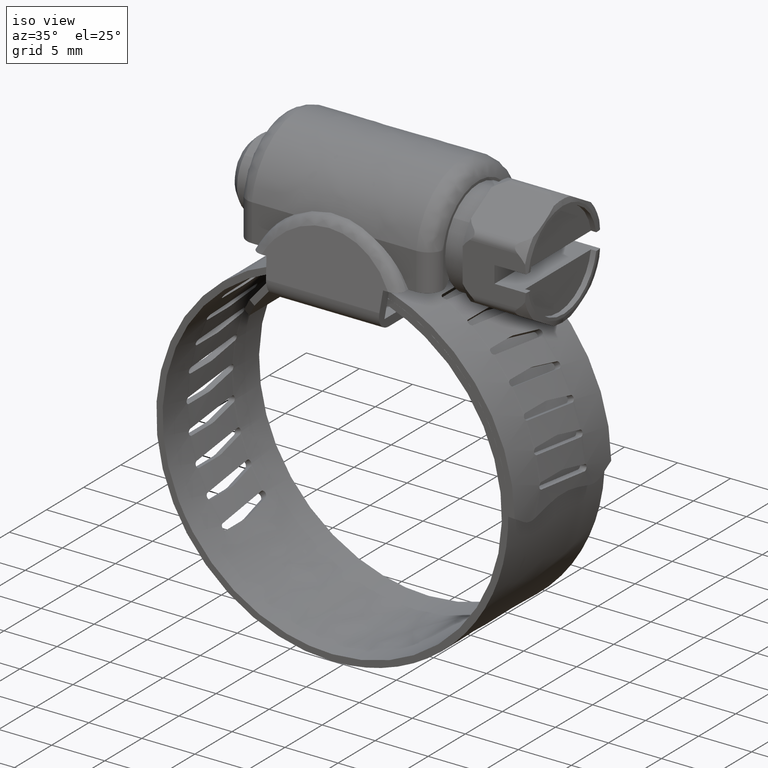
[diagram: clean part render]
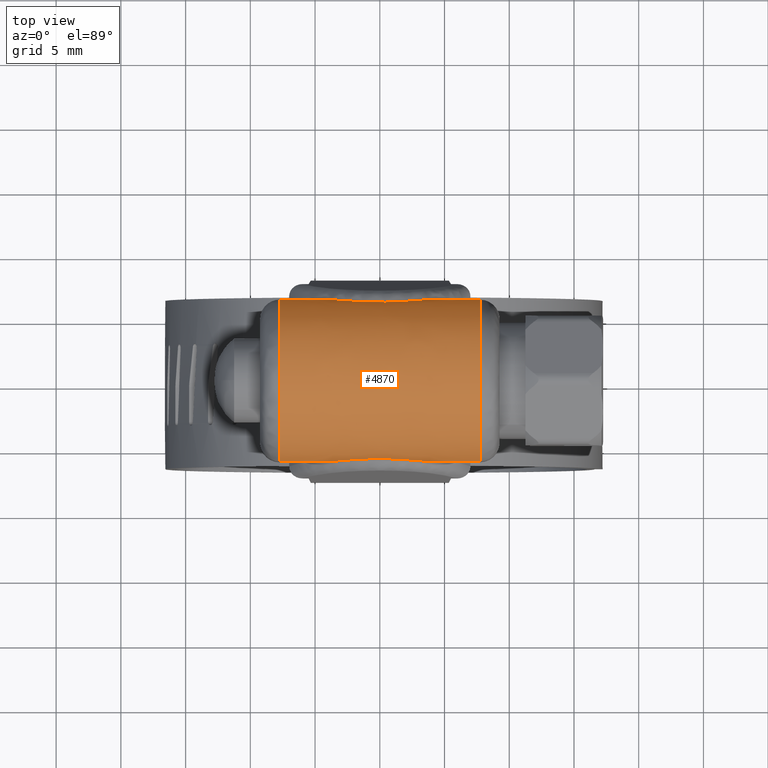
[diagram: tour spotlight — one face highlighted and labeled with its STEP entity id]
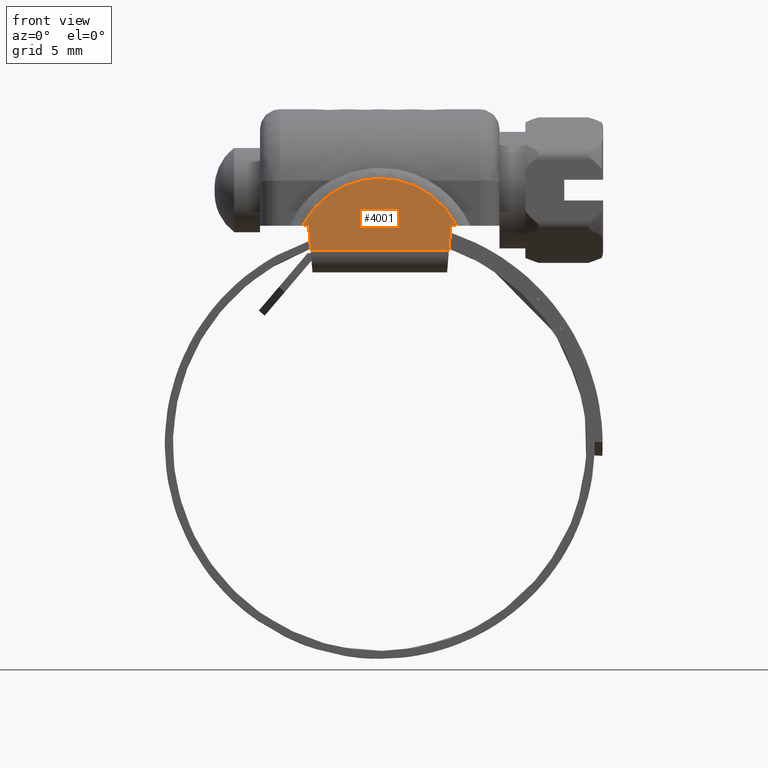
[diagram: tour spotlight — one face highlighted and labeled with its STEP entity id]
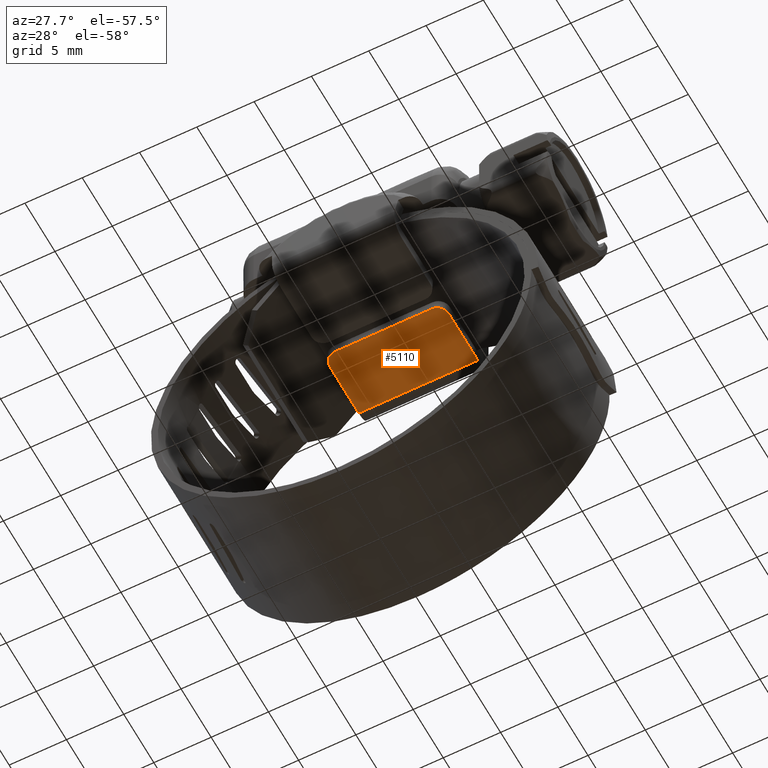
[diagram: tour spotlight — one face highlighted and labeled with its STEP entity id]
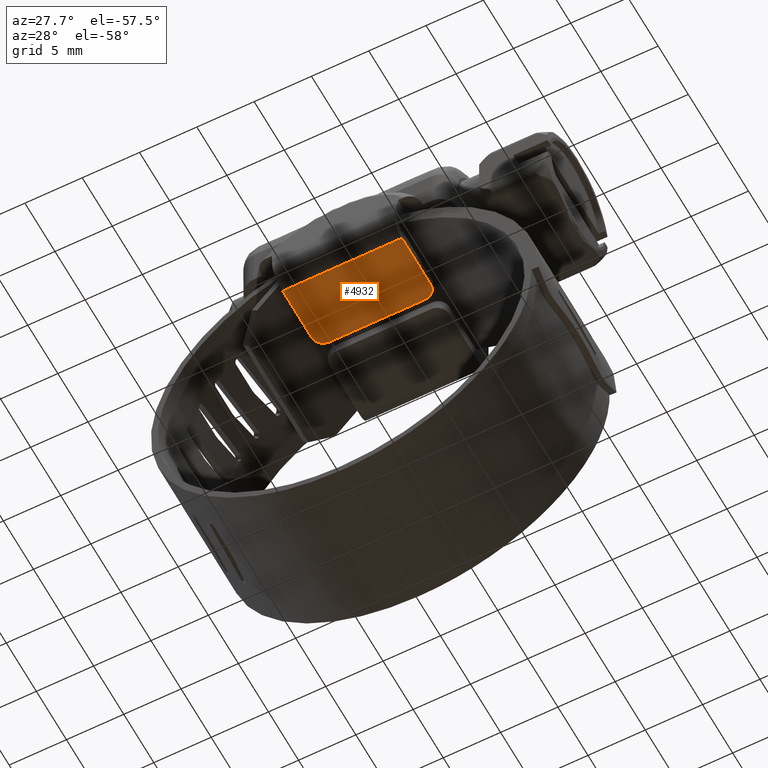
[diagram: tour spotlight — one face highlighted and labeled with its STEP entity id]
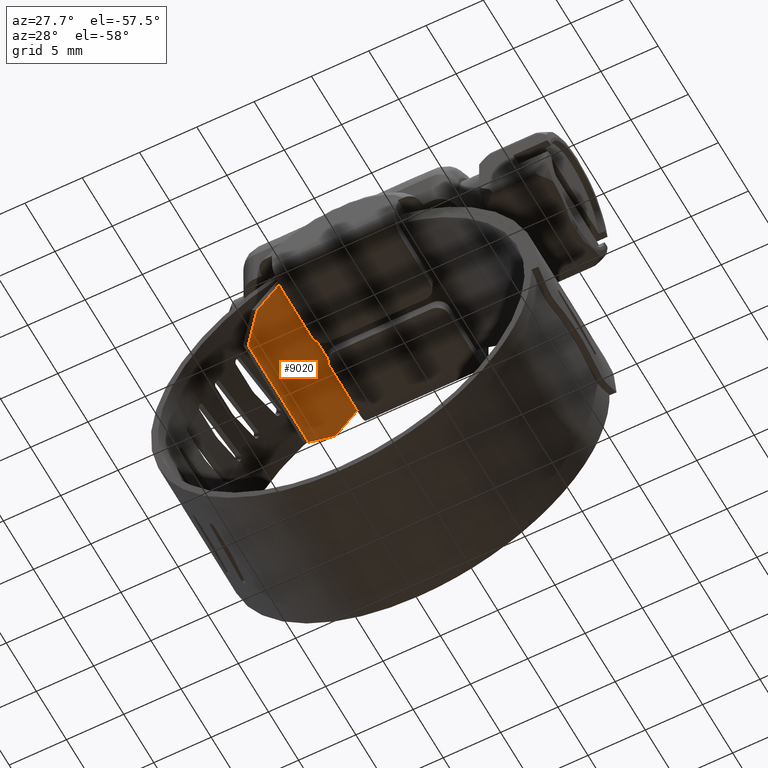
[diagram: tour spotlight — one face highlighted and labeled with its STEP entity id]
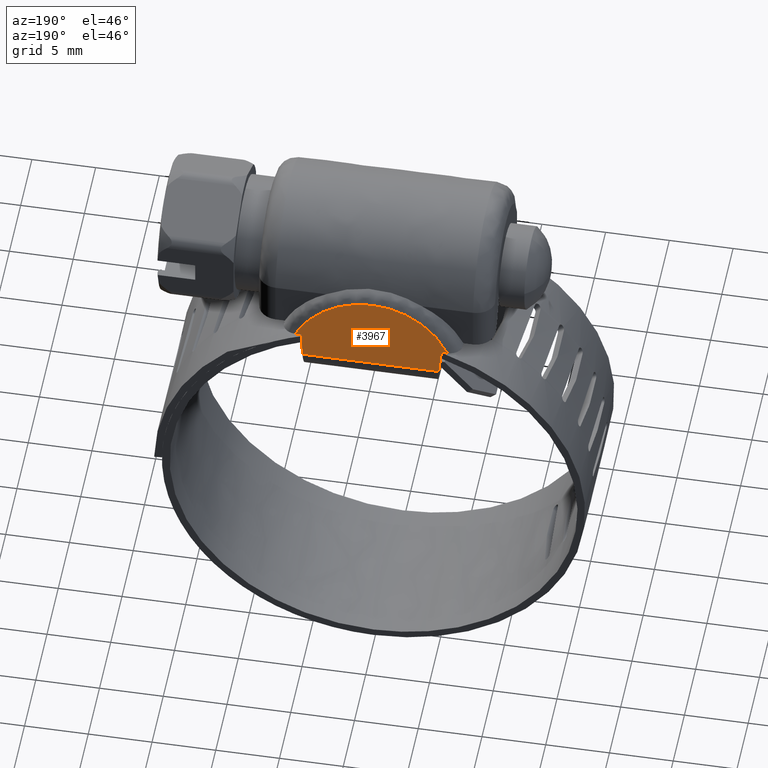
[diagram: tour spotlight — one face highlighted and labeled with its STEP entity id]
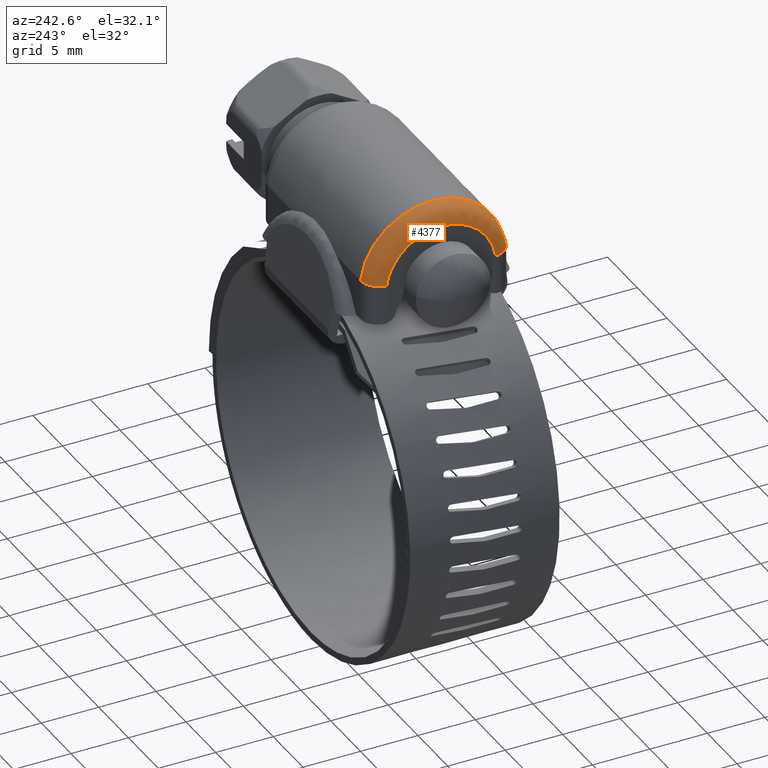
[diagram: tour spotlight — one face highlighted and labeled with its STEP entity id]
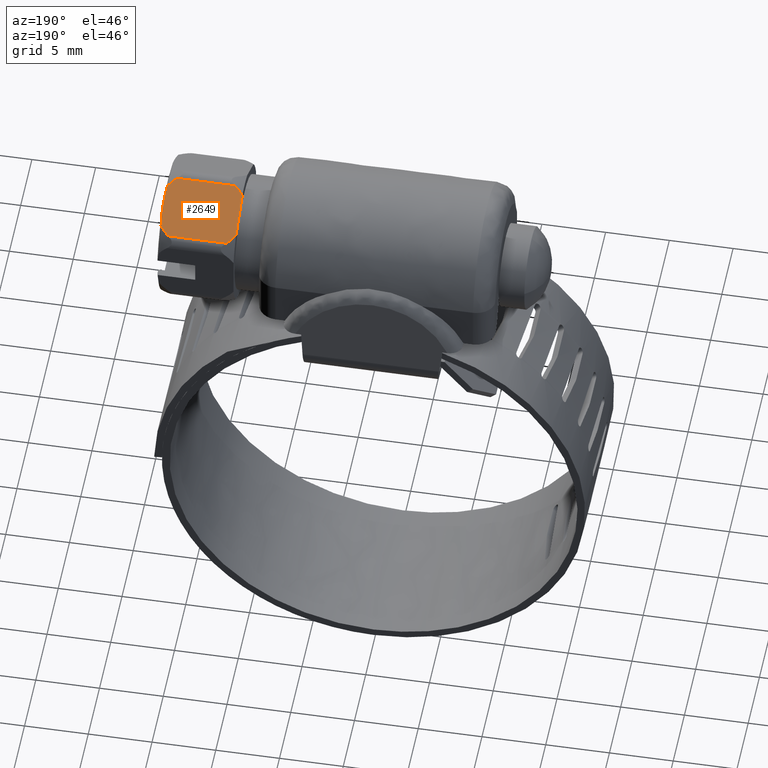
[diagram: tour spotlight — one face highlighted and labeled with its STEP entity id]
A machine part: a face-by-face anatomy tour. The part has 228 B-rep faces; the first image is the clean iso view, then the 8 largest visible faces are spotlighted one at a time (largest first), each with its STEP entity span.

Face 1 — top view, entity #4870. In plain terms, the highlighted face is a freeform B-spline surface patch.
Definition (entity closure, byte-faithful):
#3132=CARTESIAN_POINT('',(-3.766983245140355,-6.249999633170980,16.577121365332999));
#3133=VERTEX_POINT('',#3132);
#3245=CARTESIAN_POINT('',(3.766983245140355,-6.249999633170980,16.577121365332999));
#3246=VERTEX_POINT('',#3245);
#3254=CARTESIAN_POINT('',(-3.766983245140355,-6.249999633170980,16.577121365332999));
#3255=CARTESIAN_POINT('',(-3.478831496909463,-6.229233364205876,16.739128154655241));
#3256=CARTESIAN_POINT('',(-3.183300914378316,-6.204570008767342,16.882148632117168));
#3257=CARTESIAN_POINT('',(-2.576808892005547,-6.155228093785371,17.130036402120751));
#3258=CARTESIAN_POINT('',(-2.265836634976381,-6.130547265610534,17.234876518080021));
#3259=CARTESIAN_POINT('',(-1.866693869858923,-6.103751019367197,17.340919599546389));
#3260=CARTESIAN_POINT('',(-1.786486061357972,-6.098601892761600,17.360832235081901));
#3261=CARTESIAN_POINT('',(-1.626024433981459,-6.088846631766009,17.397907521513719));
#3262=CARTESIAN_POINT('',(-1.545665445436081,-6.084233341677489,17.415098594033861));
#3263=CARTESIAN_POINT('',(-1.304205280765513,-6.071283367227001,17.462673344400940));
#3264=CARTESIAN_POINT('',(-1.142721123573348,-6.063841070201703,17.489062200122419));
#3265=CARTESIAN_POINT('',(-0.656740159557208,-6.045693866015511,17.552452619586020));
#3266=CARTESIAN_POINT('',(-0.330719706065374,-6.039235105378521,17.573749912531952));
#3267=CARTESIAN_POINT('',(0.161419786626403,-6.039184386857341,17.573920279852860));
#3268=CARTESIAN_POINT('',(0.325985564198005,-6.040757096750824,17.568663909435760));
#3269=CARTESIAN_POINT('',(0.573631993009526,-6.045493593546023,17.552599085312352));
#3270=CARTESIAN_POINT('',(0.656241352251390,-6.047467871330164,17.545878086249040));
#3271=CARTESIAN_POINT('',(0.820475667525163,-6.052146371881373,17.529813216404978));
#3272=CARTESIAN_POINT('',(0.902253417529042,-6.054853191231874,17.520460500731989));
#3273=CARTESIAN_POINT('',(1.309472620170547,-6.070102513587345,17.467179843144940));
#3274=CARTESIAN_POINT('',(1.629917328613110,-6.087864840067938,17.403768142886481));
#3275=CARTESIAN_POINT('',(2.260627271324118,-6.130187882777850,17.236317853900928));
#3276=CARTESIAN_POINT('',(2.570888658853245,-6.154751397064583,17.132263968381999));
#3277=CARTESIAN_POINT('',(3.028839962946760,-6.192001216301294,16.945374784512900));
#3278=CARTESIAN_POINT('',(3.179777303179230,-6.204428908061730,16.878107182095970));
#3279=CARTESIAN_POINT('',(3.476686108309584,-6.228226204638982,16.734530296358798));
#3280=CARTESIAN_POINT('',(3.622917516897374,-6.239617229855899,16.658119055673680));
#3281=CARTESIAN_POINT('',(3.766983245140355,-6.249999633170980,16.577121365332999));
#3282=B_SPLINE_CURVE_WITH_KNOTS('',3,(#3254,#3255,#3256,#3257,#3258,#3259,#3260,#3261,#3262,#3263,#3264,#3265,#3266,#3267,#3268,#3269,#3270,#3271,#3272,#3273,#3274,#3275,#3276,#3277,#3278,#3279,#3280,#3281),.UNSPECIFIED.,.F.,.U.,(4,2,2,2,2,2,2,2,2,2,2,2,2,4),(0.000000039906754,0.125000000000001,0.250000000000001,0.281250000000001,0.312500000000001,0.375000000000001,0.500000000000001,0.562500000000001,0.593750000000001,0.625000000000000,0.750000000000000,0.875000000000000,0.937500000000000,0.999999982435041),.UNSPECIFIED.);
#3283=EDGE_CURVE('',#3133,#3246,#3282,.T.);
#3475=CARTESIAN_POINT('',(-3.767731017053410,6.249999633170980,16.577121365332999));
#3476=VERTEX_POINT('',#3475);
#3484=CARTESIAN_POINT('',(3.767731017053410,6.249999633170980,16.577121365332999));
#3485=VERTEX_POINT('',#3484);
#3486=CARTESIAN_POINT('',(3.767731017053410,6.249999633170980,16.577121365332999));
#3487=CARTESIAN_POINT('',(3.479497733507518,6.229237709105721,16.739094258291651));
#3488=CARTESIAN_POINT('',(3.183884050679524,6.204583222070062,16.882071151559519));
#3489=CARTESIAN_POINT('',(2.577243934754033,6.155257050299552,17.129902017543969));
#3490=CARTESIAN_POINT('',(2.266206147951572,6.130582696073145,17.234727400421061));
#3491=CARTESIAN_POINT('',(1.866991587071622,6.103790234875439,17.340766625409820));
#3492=CARTESIAN_POINT('',(1.786771470837745,6.098641773924828,17.360678763914390));
#3493=CARTESIAN_POINT('',(1.626284023453253,6.088887352445290,17.397754646818960));
#3494=CARTESIAN_POINT('',(1.545912167912042,6.084274283725710,17.414946625872581));
#3495=CARTESIAN_POINT('',(1.304413467685331,6.071324521135703,17.462525250646319));
#3496=CARTESIAN_POINT('',(1.142903704963588,6.063881763437935,17.488918202284239));
#3497=CARTESIAN_POINT('',(0.656845720759579,6.045732683460419,17.552320710697689));
#3498=CARTESIAN_POINT('',(0.330773580215899,6.039272260056391,17.573625094178219));
#3499=CARTESIAN_POINT('',(-0.161444854682112,6.039221514861135,17.573795563976041));
#3500=CARTESIAN_POINT('',(-0.326037165918512,6.040794574774885,17.568537633646770));
#3501=CARTESIAN_POINT('',(-0.573723678317318,6.045531948734165,17.552468569044731));
#3502=CARTESIAN_POINT('',(-0.656346915220894,6.047506583847865,17.545745815254921));
#3503=CARTESIAN_POINT('',(-0.820608736505639,6.052185828560140,17.529677062264259));
#3504=CARTESIAN_POINT('',(-0.902400225254582,6.054893035526168,17.520322214310770));
#3505=CARTESIAN_POINT('',(-1.309688241338812,6.070144131077192,17.467030690373669));
#3506=CARTESIAN_POINT('',(-1.630188360697988,6.087907219618561,17.403609516303838));
#3507=CARTESIAN_POINT('',(-2.261015828429809,6.130224851233542,17.236162525183840));
#3508=CARTESIAN_POINT('',(-2.571339628588592,6.154781890041164,17.132122576332680));
#3509=CARTESIAN_POINT('',(-3.029391561703454,6.192018955972971,16.945279975485011));
#3510=CARTESIAN_POINT('',(-3.180366883374803,6.204442304778198,16.878030458831791));
#3511=CARTESIAN_POINT('',(-3.477353567144340,6.228231820699066,16.734492306269210));
#3512=CARTESIAN_POINT('',(-3.623625442391634,6.239619468304403,16.658101592606808));
#3513=CARTESIAN_POINT('',(-3.767731017053410,6.249999633170980,16.577121365332999));
#3514=B_SPLINE_CURVE_WITH_KNOTS('',3,(#3486,#3487,#3488,#3489,#3490,#3491,#3492,#3493,#3494,#3495,#3496,#3497,#3498,#3499,#3500,#3501,#3502,#3503,#3504,#3505,#3506,#3507,#3508,#3509,#3510,#3511,#3512,#3513),.UNSPECIFIED.,.F.,.U.,(4,2,2,2,2,2,2,2,2,2,2,2,2,4),(0.000000039879375,0.125000000000000,0.250000000000001,0.281250000000000,0.312500000000000,0.375000000000000,0.500000000000000,0.562500000000000,0.593749999999999,0.624999999999999,0.749999999999999,0.875000000000000,0.937500000000000,0.999999982445228),.UNSPECIFIED.);
#3515=EDGE_CURVE('',#3485,#3476,#3514,.T.);
#4032=CARTESIAN_POINT('',(7.750000000000000,6.249999633170980,16.577121365332999));
#4033=VERTEX_POINT('',#4032);
#4094=CARTESIAN_POINT('',(7.750000000000000,-6.249999633170980,16.577121365332999));
#4095=VERTEX_POINT('',#4094);
#4136=CARTESIAN_POINT('',(7.750000000000000,-6.249999633170980,16.577121365332999));
#4137=CARTESIAN_POINT('',(7.750000000000001,-6.203362550530359,16.941238321896350));
#4138=CARTESIAN_POINT('',(7.750000000000003,-6.056294174638427,17.614810390015450));
#4139=CARTESIAN_POINT('',(7.749999999999964,-5.648337390160901,18.641190747490469));
#4140=CARTESIAN_POINT('',(7.750000000000070,-5.091932472596805,19.542312028851931));
#4141=CARTESIAN_POINT('',(7.749999999999982,-4.317573737511026,20.411214956632271));
#4142=CARTESIAN_POINT('',(7.750000000000006,-3.530967393335454,21.028401635701009));
#4143=CARTESIAN_POINT('',(7.749999999999996,-2.700190964361118,21.487140154056561));
#4144=CARTESIAN_POINT('',(7.750000000000029,-1.796758048900173,21.848678490259068));
#4145=CARTESIAN_POINT('',(7.749999999999946,-0.829688863561345,22.053349166470099));
#4146=CARTESIAN_POINT('',(7.750000000000082,0.249148602670450,22.095924834070640));
#4147=CARTESIAN_POINT('',(7.749999999999933,1.206169954431605,21.990289835461390));
#4148=CARTESIAN_POINT('',(7.750000000000062,2.234731077494352,21.698698986112110));
#4149=CARTESIAN_POINT('',(7.749999999999997,3.094075249721055,21.291419204033222));
#4150=CARTESIAN_POINT('',(7.750000000000202,3.794307525499244,20.823384595483489));
#4151=CARTESIAN_POINT('',(7.749999999999793,4.437265347304998,20.279749265122270));
#4152=CARTESIAN_POINT('',(7.750000000000144,5.093713268425949,19.543194720512769));
#4153=CARTESIAN_POINT('',(7.749999999999961,5.638517244016550,18.649573728997510));
#4154=CARTESIAN_POINT('',(7.750000000000001,6.045960016654123,17.649301019583358));
#4155=CARTESIAN_POINT('',(7.750000000000008,6.198857264412947,16.976479507952529));
#4156=CARTESIAN_POINT('',(7.750000000000000,6.249999633170980,16.577121365332999));
#4157=B_SPLINE_CURVE_WITH_KNOTS('',3,(#4136,#4137,#4138,#4139,#4140,#4141,#4142,#4143,#4144,#4145,#4146,#4147,#4148,#4149,#4150,#4151,#4152,#4153,#4154,#4155,#4156),.UNSPECIFIED.,.F.,.U.,(4,1,1,1,1,1,1,1,1,1,1,1,1,1,1,1,1,1,4),(0.000000073625610,1.101268319581070,2.060459914003371,3.303856009034881,4.263048464593355,5.541970785094573,6.288009933988194,7.105095976848773,8.455069816297058,9.236581355122715,10.337868512180499,11.332587190673600,12.433882424880760,13.179922928352580,13.854907921413220,14.956203391098050,16.128539461536612,16.981155602500831,18.189005434487900),.UNSPECIFIED.);
#4158=EDGE_CURVE('',#4095,#4033,#4157,.T.);
#4249=CARTESIAN_POINT('',(-7.749999999999810,6.249999633170980,16.577121365332999));
#4250=VERTEX_POINT('',#4249);
#4311=CARTESIAN_POINT('',(-7.750000000000000,-6.249999633170980,16.577121365332999));
#4312=VERTEX_POINT('',#4311);
#4326=CARTESIAN_POINT('',(-7.749999999999810,6.249999633170980,16.577121365332999));
#4327=CARTESIAN_POINT('',(-7.749999999999830,6.203362550530358,16.941238321896350));
#4328=CARTESIAN_POINT('',(-7.749999999999830,6.056294174638430,17.614810390015450));
#4329=CARTESIAN_POINT('',(-7.749999999999822,5.648337390160897,18.641190747490480));
#4330=CARTESIAN_POINT('',(-7.749999999999957,5.091932472596810,19.542312028851949));
#4331=CARTESIAN_POINT('',(-7.749999999999888,4.317573737511025,20.411214956632261));
#4332=CARTESIAN_POINT('',(-7.749999999999943,3.530967393335454,21.028401635701009));
#4333=CARTESIAN_POINT('',(-7.749999999999941,2.700190964361117,21.487140154056561));
#4334=CARTESIAN_POINT('',(-7.750000000000011,1.796758048900172,21.848678490259061));
#4335=CARTESIAN_POINT('',(-7.749999999999927,0.829688863561345,22.053349166470099));
#4336=CARTESIAN_POINT('',(-7.750000000000095,-0.249148602670451,22.095924834070640));
#4337=CARTESIAN_POINT('',(-7.749999999999953,-1.206169954431604,21.990289835461379));
#4338=CARTESIAN_POINT('',(-7.750000000000088,-2.234731077494352,21.698698986112120));
#4339=CARTESIAN_POINT('',(-7.750000000000040,-3.094075249721053,21.291419204033222));
#4340=CARTESIAN_POINT('',(-7.750000000000238,-3.794307525499246,20.823384595483489));
#4341=CARTESIAN_POINT('',(-7.749999999999824,-4.437265347304997,20.279749265122270));
#4342=CARTESIAN_POINT('',(-7.750000000000181,-5.093713268425950,19.543194720512769));
#4343=CARTESIAN_POINT('',(-7.749999999999987,-5.638517244016548,18.649573728997510));
#4344=CARTESIAN_POINT('',(-7.750000000000017,-6.045960016654124,17.649301019583358));
#4345=CARTESIAN_POINT('',(-7.750000000000013,-6.198857264412947,16.976479507952529));
#4346=CARTESIAN_POINT('',(-7.750000000000000,-6.249999633170980,16.577121365332999));
#4347=B_SPLINE_CURVE_WITH_KNOTS('',3,(#4326,#4327,#4328,#4329,#4330,#4331,#4332,#4333,#4334,#4335,#4336,#4337,#4338,#4339,#4340,#4341,#4342,#4343,#4344,#4345,#4346),.UNSPECIFIED.,.F.,.U.,(4,1,1,1,1,1,1,1,1,1,1,1,1,1,1,1,1,1,4),(0.000000073625610,1.101268319581070,2.060459914003371,3.303856009034881,4.263048464593355,5.541970785094573,6.288009933988194,7.105095976848773,8.455069816297058,9.236581355122715,10.337868512180499,11.332587190673600,12.433882424880760,13.179922928352580,13.854907921413220,14.956203391098050,16.128539461536612,16.981155602500831,18.189005434487900),.UNSPECIFIED.);
#4348=EDGE_CURVE('',#4250,#4312,#4347,.T.);
#4801=CARTESIAN_POINT('',(7.750000000000000,-6.249999633170980,16.577121365332999));
#4802=CARTESIAN_POINT('',(3.766983245140355,-6.249999633170980,16.577121365332999));
#4803=QUASI_UNIFORM_CURVE('',1,(#4801,#4802),.UNSPECIFIED.,.F.,.U.);
#4804=EDGE_CURVE('',#4095,#3246,#4803,.T.);
#4824=CARTESIAN_POINT('',(-3.766983245140355,-6.249999633170980,16.577121365332999));
#4825=CARTESIAN_POINT('',(-7.750000000000000,-6.249999633170980,16.577121365332999));
#4826=QUASI_UNIFORM_CURVE('',1,(#4824,#4825),.UNSPECIFIED.,.F.,.U.);
#4827=EDGE_CURVE('',#3133,#4312,#4826,.T.);
#4834=CARTESIAN_POINT('',(8.137500000000001,6.256752797267127,16.522550016851341));
#4835=CARTESIAN_POINT('',(-8.147187500000040,6.256752797267127,16.522550016851341));
#4836=CARTESIAN_POINT('',(8.137500000000001,5.578620881440008,22.205784116358405));
#4837=CARTESIAN_POINT('',(-8.147187500000040,5.578620881440008,22.205784116358405));
#4838=CARTESIAN_POINT('',(8.137500000000001,-0.143444799420466,22.075488034368480));
#4839=CARTESIAN_POINT('',(-8.147187500000040,-0.143444799420466,22.075488034368480));
#4840=CARTESIAN_POINT('',(8.137500000000001,-5.865510480280938,21.945191952378561));
#4841=CARTESIAN_POINT('',(-8.147187500000040,-5.865510480280938,21.945191952378561));
#4842=CARTESIAN_POINT('',(8.137500000000001,-6.284249946758260,16.236981200813990));
#4843=CARTESIAN_POINT('',(-8.147187500000040,-6.284249946758260,16.236981200813990));
#4851=(BOUNDED_SURFACE()B_SPLINE_SURFACE(1,2,((#4834,#4836,#4838,#4840,#4842),(#4835,#4837,#4839,#4841,#4843)),.UNSPECIFIED.,.F.,.F.,.U.)B_SPLINE_SURFACE_WITH_KNOTS((2,2),(3,2,3),(0.0,16.284687500000040),(0.0,9.738261264178698,19.476522528357400),.UNSPECIFIED.)GEOMETRIC_REPRESENTATION_ITEM()RATIONAL_B_SPLINE_SURFACE(((1.0,0.740218127486832,1.0,0.740218127486832,1.0),(1.0,0.740218127486832,1.0,0.740218127486832,1.0)))REPRESENTATION_ITEM('')SURFACE());
#4852=CARTESIAN_POINT('',(7.750000000000000,6.249999633170980,16.577121365332999));
#4853=CARTESIAN_POINT('',(3.767731017053410,6.249999633170980,16.577121365332999));
#4854=QUASI_UNIFORM_CURVE('',1,(#4852,#4853),.UNSPECIFIED.,.F.,.U.);
#4855=EDGE_CURVE('',#4033,#3485,#4854,.T.);
#4856=ORIENTED_EDGE('',*,*,#4855,.T.);
#4857=ORIENTED_EDGE('',*,*,#3515,.T.);
#4858=CARTESIAN_POINT('',(-3.767731017053410,6.249999633170980,16.577121365332999));
#4859=CARTESIAN_POINT('',(-7.749999999999810,6.249999633170980,16.577121365332999));
#4860=QUASI_UNIFORM_CURVE('',1,(#4858,#4859),.UNSPECIFIED.,.F.,.U.);
#4861=EDGE_CURVE('',#3476,#4250,#4860,.T.);
#4862=ORIENTED_EDGE('',*,*,#4861,.T.);
#4863=ORIENTED_EDGE('',*,*,#4348,.T.);
#4864=ORIENTED_EDGE('',*,*,#4827,.F.);
#4865=ORIENTED_EDGE('',*,*,#3283,.T.);
#4866=ORIENTED_EDGE('',*,*,#4804,.F.);
#4867=ORIENTED_EDGE('',*,*,#4158,.T.);
#4868=EDGE_LOOP('',(#4856,#4857,#4862,#4863,#4864,#4865,#4866,#4867));
#4869=FACE_OUTER_BOUND('',#4868,.T.);
#4870=ADVANCED_FACE('',(#4869),#4851,.T.);

Face 2 — front view, entity #4001. In plain terms, the highlighted face is a freeform B-spline surface patch.
Definition (entity closure, byte-faithful):
#2926=CARTESIAN_POINT('',(-5.343755088336830,-7.786144508388070,11.202144060042160));
#2927=VERTEX_POINT('',#2926);
#2948=CARTESIAN_POINT('',(5.343755088336931,-7.786144508388049,11.202144060042141));
#2949=VERTEX_POINT('',#2948);
#2963=CARTESIAN_POINT('',(-5.343755088336830,-7.786144508388070,11.202144060042160));
#2964=CARTESIAN_POINT('',(5.343755088336931,-7.786144508388049,11.202144060042141));
#2965=QUASI_UNIFORM_CURVE('',1,(#2963,#2964),.UNSPECIFIED.,.F.,.U.);
#2966=EDGE_CURVE('',#2927,#2949,#2965,.T.);
#3158=CARTESIAN_POINT('',(-5.962146346480231,-7.501606321312799,13.077083000000201));
#3159=VERTEX_POINT('',#3158);
#3183=CARTESIAN_POINT('',(5.962146346480231,-7.501606321312799,13.077083000000201));
#3184=VERTEX_POINT('',#3183);
#3185=CARTESIAN_POINT('',(5.962146346480231,-7.501606321312799,13.077083000000201));
#3186=CARTESIAN_POINT('',(4.098355137342957,-6.947681100976019,16.727123706694861));
#3187=CARTESIAN_POINT('',(7.585472E-015,-6.947681100976018,16.727123706694851));
#3188=CARTESIAN_POINT('',(-4.098355137342947,-6.947681100976019,16.727123706694861));
#3189=CARTESIAN_POINT('',(-5.962146346480231,-7.501606321312799,13.077083000000201));
#3197=(BOUNDED_CURVE()B_SPLINE_CURVE(2,(#3185,#3186,#3187,#3188,#3189),.UNSPECIFIED.,.F.,.U.)B_SPLINE_CURVE_WITH_KNOTS((3,2,3),(0.0,0.500000000000000,1.0),.UNSPECIFIED.)CURVE()GEOMETRIC_REPRESENTATION_ITEM()RATIONAL_B_SPLINE_CURVE((1.0,0.852867418584550,1.0,0.852867418584550,1.0))REPRESENTATION_ITEM(''));
#3198=EDGE_CURVE('',#3184,#3159,#3197,.T.);
#3968=CARTESIAN_POINT('',(-6.557764743382014,-6.905799915372400,17.003096034159320));
#3969=CARTESIAN_POINT('',(-6.557764743382014,-7.828025836424293,10.926170794031510));
#3970=CARTESIAN_POINT('',(6.557765063216467,-6.905799915372400,17.003096034159320));
#3971=CARTESIAN_POINT('',(6.557765063216467,-7.828025836424293,10.926170794031510));
#3972=B_SPLINE_SURFACE_WITH_KNOTS('',1,1,((#3968,#3970),(#3969,#3971)),.UNSPECIFIED.,.F.,.F.,.U.,(2,2),(2,2),(0.0,6.146504781057478),(0.0,13.115529806598479),.UNSPECIFIED.);
#3973=CARTESIAN_POINT('',(-5.500000000000000,-7.501606321312620,13.077083000000201));
#3974=VERTEX_POINT('',#3973);
#3975=CARTESIAN_POINT('',(-5.500000000000000,-7.501606321312620,13.077083000000201));
#3976=CARTESIAN_POINT('',(-5.343755088336830,-7.786144508388070,11.202144060042160));
#3977=QUASI_UNIFORM_CURVE('',1,(#3975,#3976),.UNSPECIFIED.,.F.,.U.);
#3978=EDGE_CURVE('',#3974,#2927,#3977,.T.);
#3979=ORIENTED_EDGE('',*,*,#3978,.T.);
#3980=ORIENTED_EDGE('',*,*,#2966,.T.);
#3981=CARTESIAN_POINT('',(5.500000000000100,-7.501606321312799,13.077083000000201));
#3982=VERTEX_POINT('',#3981);
#3983=CARTESIAN_POINT('',(5.343755088336931,-7.786144508388049,11.202144060042141));
#3984=CARTESIAN_POINT('',(5.500000000000100,-7.501606321312799,13.077083000000201));
#3985=QUASI_UNIFORM_CURVE('',1,(#3983,#3984),.UNSPECIFIED.,.F.,.U.);
#3986=EDGE_CURVE('',#2949,#3982,#3985,.T.);
#3987=ORIENTED_EDGE('',*,*,#3986,.T.);
#3988=CARTESIAN_POINT('',(5.500000000000100,-7.501606321312799,13.077083000000201));
#3989=CARTESIAN_POINT('',(5.962146346480231,-7.501606321312799,13.077083000000201));
#3990=QUASI_UNIFORM_CURVE('',1,(#3988,#3989),.UNSPECIFIED.,.F.,.U.);
#3991=EDGE_CURVE('',#3982,#3184,#3990,.T.);
#3992=ORIENTED_EDGE('',*,*,#3991,.T.);
#3993=ORIENTED_EDGE('',*,*,#3198,.T.);
#3994=CARTESIAN_POINT('',(-5.962146346480231,-7.501606321312799,13.077083000000201));
#3995=CARTESIAN_POINT('',(-5.500000000000000,-7.501606321312620,13.077083000000201));
#3996=QUASI_UNIFORM_CURVE('',1,(#3994,#3995),.UNSPECIFIED.,.F.,.U.);
#3997=EDGE_CURVE('',#3159,#3974,#3996,.T.);
#3998=ORIENTED_EDGE('',*,*,#3997,.T.);
#3999=EDGE_LOOP('',(#3979,#3980,#3987,#3992,#3993,#3998));
#4000=FACE_OUTER_BOUND('',#3999,.T.);
#4001=ADVANCED_FACE('',(#4000),#3972,.T.);

Face 3 — auxiliary view, entity #5110. In plain terms, the highlighted face is a freeform B-spline surface patch.
Definition (entity closure, byte-faithful):
#2987=CARTESIAN_POINT('',(-5.200000000000000,6.325492857920280,9.477083000000221));
#2988=VERTEX_POINT('',#2987);
#3009=CARTESIAN_POINT('',(5.200000000000100,6.325492857920280,9.477083000000221));
#3010=VERTEX_POINT('',#3009);
#3024=CARTESIAN_POINT('',(-5.200000000000000,6.325492857920280,9.477083000000221));
#3025=CARTESIAN_POINT('',(5.200000000000100,6.325492857920280,9.477083000000221));
#3026=QUASI_UNIFORM_CURVE('',1,(#3024,#3025),.UNSPECIFIED.,.F.,.U.);
#3027=EDGE_CURVE('',#2988,#3010,#3026,.T.);
#3617=CARTESIAN_POINT('',(-4.196533785100645,0.500000000000056,9.477083000000221));
#3618=VERTEX_POINT('',#3617);
#3619=CARTESIAN_POINT('',(-5.200000000000000,1.500000000000055,9.477083000000221));
#3620=VERTEX_POINT('',#3619);
#3621=CARTESIAN_POINT('',(-4.196533785100645,0.500000000000056,9.477083000000221));
#3622=CARTESIAN_POINT('',(-4.303083714192826,0.499738303942666,9.477083000000217));
#3623=CARTESIAN_POINT('',(-4.508009359264744,0.532424687025404,9.477083000000228));
#3624=CARTESIAN_POINT('',(-4.752437914624839,0.654894270127812,9.477083000000228));
#3625=CARTESIAN_POINT('',(-4.939789500568475,0.815971164989985,9.477083000000203));
#3626=CARTESIAN_POINT('',(-5.058107719139556,0.974947011552322,9.477083000000251));
#3627=CARTESIAN_POINT('',(-5.167437426416454,1.205069555378883,9.477083000000151));
#3628=CARTESIAN_POINT('',(-5.199916390827093,1.377042448630024,9.477083000000285));
#3629=CARTESIAN_POINT('',(-5.200000000000000,1.500000000000055,9.477083000000221));
#3630=B_SPLINE_CURVE_WITH_KNOTS('',3,(#3621,#3622,#3623,#3624,#3625,#3626,#3627,#3628,#3629),.UNSPECIFIED.,.F.,.U.,(4,1,1,1,1,1,4),(0.000000040569912,0.319639977731425,0.614707263796598,0.811395777469738,1.057278626042616,1.204807694891577,1.573624782508416),.UNSPECIFIED.);
#3631=EDGE_CURVE('',#3618,#3620,#3630,.T.);
#3751=CARTESIAN_POINT('',(4.196533785100741,0.500000000000056,9.477083000000221));
#3752=VERTEX_POINT('',#3751);
#3758=CARTESIAN_POINT('',(5.200000000000100,1.500000000000055,9.477083000000221));
#3759=VERTEX_POINT('',#3758);
#3760=CARTESIAN_POINT('',(5.200000000000100,1.500000000000055,9.477083000000221));
#3761=CARTESIAN_POINT('',(5.199858166008269,1.393455874046008,9.477083000000217));
#3762=CARTESIAN_POINT('',(5.173100183484082,1.229644232485058,9.477083000000226));
#3763=CARTESIAN_POINT('',(5.072206223800667,0.995452056444461,9.477083000000231));
#3764=CARTESIAN_POINT('',(4.926545033582175,0.794614852998870,9.477083000000166));
#3765=CARTESIAN_POINT('',(4.723807505747940,0.636974076994806,9.477083000000246));
#3766=CARTESIAN_POINT('',(4.475177865560745,0.527275330960401,9.477083000000265));
#3767=CARTESIAN_POINT('',(4.303076566768998,0.499772889676849,9.477083000000144));
#3768=CARTESIAN_POINT('',(4.196533785100741,0.500000000000056,9.477083000000221));
#3769=B_SPLINE_CURVE_WITH_KNOTS('',3,(#3760,#3761,#3762,#3763,#3764,#3765,#3766,#3767,#3768),.UNSPECIFIED.,.F.,.U.,(4,1,1,1,1,1,4),(0.000000040514959,0.319615714516998,0.491721543049581,0.762171018779723,1.057198365763964,1.253889368449556,1.573505323501727),.UNSPECIFIED.);
#3770=EDGE_CURVE('',#3759,#3752,#3769,.T.);
#3791=CARTESIAN_POINT('',(-4.196533785100645,0.500000000000056,9.477083000000221));
#3792=CARTESIAN_POINT('',(4.196533785100741,0.500000000000056,9.477083000000221));
#3793=QUASI_UNIFORM_CURVE('',1,(#3791,#3792),.UNSPECIFIED.,.F.,.U.);
#3794=EDGE_CURVE('',#3618,#3752,#3793,.T.);
#5089=CARTESIAN_POINT('',(-5.719479747431165,0.209016643037876,9.477083000000221));
#5090=CARTESIAN_POINT('',(5.719479468481527,0.209016643037876,9.477083000000221));
#5091=CARTESIAN_POINT('',(-5.719479747431165,6.616476371134355,9.477083000000221));
#5092=CARTESIAN_POINT('',(5.719479468481527,6.616476371134355,9.477083000000221));
#5093=B_SPLINE_SURFACE_WITH_KNOTS('',1,1,((#5089,#5091),(#5090,#5092)),.UNSPECIFIED.,.F.,.F.,.U.,(2,2),(2,2),(0.0,11.438959215912689),(0.0,6.407459728096479),.UNSPECIFIED.);
#5094=CARTESIAN_POINT('',(-5.200000000000000,1.500000000000055,9.477083000000221));
#5095=CARTESIAN_POINT('',(-5.200000000000000,6.325492857920280,9.477083000000221));
#5096=QUASI_UNIFORM_CURVE('',1,(#5094,#5095),.UNSPECIFIED.,.F.,.U.);
#5097=EDGE_CURVE('',#3620,#2988,#5096,.T.);
#5098=ORIENTED_EDGE('',*,*,#5097,.T.);
#5099=ORIENTED_EDGE('',*,*,#3027,.T.);
#5100=CARTESIAN_POINT('',(5.200000000000100,1.500000000000055,9.477083000000221));
#5101=CARTESIAN_POINT('',(5.200000000000100,6.325492857920280,9.477083000000221));
#5102=QUASI_UNIFORM_CURVE('',1,(#5100,#5101),.UNSPECIFIED.,.F.,.U.);
#5103=EDGE_CURVE('',#3759,#3010,#5102,.T.);
#5104=ORIENTED_EDGE('',*,*,#5103,.F.);
#5105=ORIENTED_EDGE('',*,*,#3770,.T.);
#5106=ORIENTED_EDGE('',*,*,#3794,.F.);
#5107=ORIENTED_EDGE('',*,*,#3631,.T.);
#5108=EDGE_LOOP('',(#5098,#5099,#5104,#5105,#5106,#5107));
#5109=FACE_OUTER_BOUND('',#5108,.T.);
#5110=ADVANCED_FACE('',(#5109),#5093,.F.);

Face 4 — auxiliary view, entity #4932. In plain terms, the highlighted face is a freeform B-spline surface patch.
Definition (entity closure, byte-faithful):
#2924=CARTESIAN_POINT('',(-5.200000000000000,-6.303124778494929,9.477083000000221));
#2925=VERTEX_POINT('',#2924);
#2941=CARTESIAN_POINT('',(5.200000000000100,-6.303124778494929,9.477083000000221));
#2942=VERTEX_POINT('',#2941);
#2943=CARTESIAN_POINT('',(5.200000000000100,-6.303124778494929,9.477083000000221));
#2944=CARTESIAN_POINT('',(-5.200000000000000,-6.303124778494929,9.477083000000221));
#2945=QUASI_UNIFORM_CURVE('',1,(#2943,#2944),.UNSPECIFIED.,.F.,.U.);
#2946=EDGE_CURVE('',#2942,#2925,#2945,.T.);
#3574=CARTESIAN_POINT('',(-4.196533785100645,-0.499999999999945,9.477083000000221));
#3575=VERTEX_POINT('',#3574);
#3581=CARTESIAN_POINT('',(-5.200000000000000,-1.499999999999946,9.477083000000221));
#3582=VERTEX_POINT('',#3581);
#3583=CARTESIAN_POINT('',(-5.200000000000000,-1.499999999999946,9.477083000000221));
#3584=CARTESIAN_POINT('',(-5.199850140605844,-1.393457421725217,9.477083000000221));
#3585=CARTESIAN_POINT('',(-5.173100505732201,-1.229645308168115,9.477083000000222));
#3586=CARTESIAN_POINT('',(-5.072196317353271,-0.995459164140071,9.477083000000221));
#3587=CARTESIAN_POINT('',(-4.936244163105982,-0.808018087791692,9.477083000000222));
#3588=CARTESIAN_POINT('',(-4.750863572138165,-0.656452770844733,9.477083000000221));
#3589=CARTESIAN_POINT('',(-4.507934023056943,-0.534662749330979,9.477083000000247));
#3590=CARTESIAN_POINT('',(-4.319479591451541,-0.499686475493465,9.477083000000190));
#3591=CARTESIAN_POINT('',(-4.196533785100645,-0.499999999999945,9.477083000000221));
#3592=B_SPLINE_CURVE_WITH_KNOTS('',3,(#3583,#3584,#3585,#3586,#3587,#3588,#3589,#3590,#3591),.UNSPECIFIED.,.F.,.U.,(4,1,1,1,1,1,4),(0.000000040510827,0.319613614604780,0.491718312126620,0.762166010689613,1.008014759657304,1.204708317335058,1.573494984661871),.UNSPECIFIED.);
#3593=EDGE_CURVE('',#3582,#3575,#3592,.T.);
#3676=CARTESIAN_POINT('',(4.196533785100741,-0.499999999999945,9.477083000000221));
#3677=VERTEX_POINT('',#3676);
#3678=CARTESIAN_POINT('',(5.200000000000100,-1.499999999999946,9.477083000000221));
#3679=VERTEX_POINT('',#3678);
#3680=CARTESIAN_POINT('',(4.196533785100741,-0.499999999999945,9.477083000000221));
#3681=CARTESIAN_POINT('',(4.303084448035742,-0.499738382479755,9.477083000000210));
#3682=CARTESIAN_POINT('',(4.508006405661178,-0.532425949143699,9.477083000000230));
#3683=CARTESIAN_POINT('',(4.752444300763024,-0.654889186608170,9.477083000000198));
#3684=CARTESIAN_POINT('',(4.927279253951044,-0.805246205916134,9.477083000000249));
#3685=CARTESIAN_POINT('',(5.069505332805365,-0.986758455060605,9.477083000000233));
#3686=CARTESIAN_POINT('',(5.173945957241986,-1.221388783426308,9.477083000000173));
#3687=CARTESIAN_POINT('',(5.199884830721044,-1.409845918342803,9.477083000000246));
#3688=CARTESIAN_POINT('',(5.200000000000100,-1.499999999999946,9.477083000000221));
#3689=B_SPLINE_CURVE_WITH_KNOTS('',3,(#3680,#3681,#3682,#3683,#3684,#3685,#3686,#3687,#3688),.UNSPECIFIED.,.F.,.U.,(4,1,1,1,1,1,4),(0.000000040570185,0.319639979408615,0.614707267022597,0.811395781727079,1.008097910992088,1.303158574242217,1.573624790765243),.UNSPECIFIED.);
#3690=EDGE_CURVE('',#3677,#3679,#3689,.T.);
#3805=CARTESIAN_POINT('',(4.196533785100741,-0.499999999999945,9.477083000000221));
#3806=CARTESIAN_POINT('',(-4.196533785100645,-0.499999999999945,9.477083000000221));
#3807=QUASI_UNIFORM_CURVE('',1,(#3805,#3806),.UNSPECIFIED.,.F.,.U.);
#3808=EDGE_CURVE('',#3677,#3575,#3807,.T.);
#4911=CARTESIAN_POINT('',(-5.719479747431165,-6.592991013359923,9.477083000000221));
#4912=CARTESIAN_POINT('',(5.719479468481527,-6.592991013359923,9.477083000000221));
#4913=CARTESIAN_POINT('',(-5.719479747431165,-0.210133765134953,9.477083000000221));
#4914=CARTESIAN_POINT('',(5.719479468481527,-0.210133765134953,9.477083000000221));
#4915=B_SPLINE_SURFACE_WITH_KNOTS('',1,1,((#4911,#4913),(#4912,#4914)),.UNSPECIFIED.,.F.,.F.,.U.,(2,2),(2,2),(0.0,11.438959215912689),(0.0,6.382857248224969),.UNSPECIFIED.);
#4916=CARTESIAN_POINT('',(5.200000000000100,-6.303124778494929,9.477083000000221));
#4917=CARTESIAN_POINT('',(5.200000000000100,-1.499999999999946,9.477083000000221));
#4918=QUASI_UNIFORM_CURVE('',1,(#4916,#4917),.UNSPECIFIED.,.F.,.U.);
#4919=EDGE_CURVE('',#2942,#3679,#4918,.T.);
#4920=ORIENTED_EDGE('',*,*,#4919,.F.);
#4921=ORIENTED_EDGE('',*,*,#2946,.T.);
#4922=CARTESIAN_POINT('',(-5.200000000000000,-6.303124778494929,9.477083000000221));
#4923=CARTESIAN_POINT('',(-5.200000000000000,-1.499999999999946,9.477083000000221));
#4924=QUASI_UNIFORM_CURVE('',1,(#4922,#4923),.UNSPECIFIED.,.F.,.U.);
#4925=EDGE_CURVE('',#2925,#3582,#4924,.T.);
#4926=ORIENTED_EDGE('',*,*,#4925,.T.);
#4927=ORIENTED_EDGE('',*,*,#3593,.T.);
#4928=ORIENTED_EDGE('',*,*,#3808,.F.);
#4929=ORIENTED_EDGE('',*,*,#3690,.T.);
#4930=EDGE_LOOP('',(#4920,#4921,#4926,#4927,#4928,#4929));
#4931=FACE_OUTER_BOUND('',#4930,.T.);
#4932=ADVANCED_FACE('',(#4931),#4915,.F.);

Face 5 — auxiliary view, entity #9020. In plain terms, the highlighted face is a freeform B-spline surface patch.
Definition (entity closure, byte-faithful):
#8299=CARTESIAN_POINT('',(-7.334361413864390,6.500000000000000,7.958639061497649));
#8300=VERTEX_POINT('',#8299);
#8306=CARTESIAN_POINT('',(-8.890333000000000,5.0,6.131359000000151));
#8307=VERTEX_POINT('',#8306);
#8308=CARTESIAN_POINT('',(-8.890333000000000,5.0,6.131359000000151));
#8309=CARTESIAN_POINT('',(-7.334361413864390,6.500000000000000,7.958639061497649));
#8310=QUASI_UNIFORM_CURVE('',1,(#8308,#8309),.UNSPECIFIED.,.F.,.U.);
#8311=EDGE_CURVE('',#8307,#8300,#8310,.T.);
#8335=CARTESIAN_POINT('',(-8.890333000000000,-5.0,6.131359000000190));
#8336=VERTEX_POINT('',#8335);
#8342=CARTESIAN_POINT('',(-7.334361413863970,-6.500000000000250,7.958639061498129));
#8343=VERTEX_POINT('',#8342);
#8344=CARTESIAN_POINT('',(-7.334361413863970,-6.500000000000250,7.958639061498129));
#8345=CARTESIAN_POINT('',(-8.890333000000000,-5.0,6.131359000000190));
#8346=QUASI_UNIFORM_CURVE('',1,(#8344,#8345),.UNSPECIFIED.,.F.,.U.);
#8347=EDGE_CURVE('',#8343,#8336,#8346,.T.);
#8972=CARTESIAN_POINT('',(-5.275000000000000,-6.500000000000000,10.377083000000200));
#8973=VERTEX_POINT('',#8972);
#8979=CARTESIAN_POINT('',(-5.275000000000000,6.500000000000000,10.377083000000200));
#8980=VERTEX_POINT('',#8979);
#8981=CARTESIAN_POINT('',(-5.275000000000000,6.500000000000000,10.377083000000200));
#8982=CARTESIAN_POINT('',(-5.275000000000000,-6.500000000000000,10.377083000000200));
#8983=QUASI_UNIFORM_CURVE('',1,(#8981,#8982),.UNSPECIFIED.,.F.,.U.);
#8984=EDGE_CURVE('',#8980,#8973,#8983,.T.);
#8995=CARTESIAN_POINT('',(-5.094414259409902,-7.149349974803739,10.589156746147930));
#8996=CARTESIAN_POINT('',(-9.070918966855336,-7.149349974803739,5.919284988134363));
#8997=CARTESIAN_POINT('',(-5.094414259409902,7.149350323490664,10.589156746147930));
#8998=CARTESIAN_POINT('',(-9.070918966855336,7.149350323490664,5.919284988134363));
#8999=B_SPLINE_SURFACE_WITH_KNOTS('',1,1,((#8995,#8997),(#8996,#8998)),.UNSPECIFIED.,.F.,.F.,.U.,(2,2),(2,2),(0.0,6.133538287532608),(0.0,14.298700298294399),.UNSPECIFIED.);
#9000=CARTESIAN_POINT('',(-8.890333000000000,5.0,6.131359000000151));
#9001=CARTESIAN_POINT('',(-8.890333000000000,-5.0,6.131359000000190));
#9002=QUASI_UNIFORM_CURVE('',1,(#9000,#9001),.UNSPECIFIED.,.F.,.U.);
#9003=EDGE_CURVE('',#8307,#8336,#9002,.T.);
#9004=ORIENTED_EDGE('',*,*,#9003,.F.);
#9005=ORIENTED_EDGE('',*,*,#8311,.T.);
#9006=CARTESIAN_POINT('',(-7.334361413864390,6.500000000000000,7.958639061497649));
#9007=CARTESIAN_POINT('',(-5.275000000000000,6.500000000000000,10.377083000000200));
#9008=QUASI_UNIFORM_CURVE('',1,(#9006,#9007),.UNSPECIFIED.,.F.,.U.);
#9009=EDGE_CURVE('',#8300,#8980,#9008,.T.);
#9010=ORIENTED_EDGE('',*,*,#9009,.T.);
#9011=ORIENTED_EDGE('',*,*,#8984,.T.);
#9012=CARTESIAN_POINT('',(-7.334361413863970,-6.500000000000250,7.958639061498129));
#9013=CARTESIAN_POINT('',(-5.275000000000000,-6.500000000000000,10.377083000000200));
#9014=QUASI_UNIFORM_CURVE('',1,(#9012,#9013),.UNSPECIFIED.,.F.,.U.);
#9015=EDGE_CURVE('',#8343,#8973,#9014,.T.);
#9016=ORIENTED_EDGE('',*,*,#9015,.F.);
#9017=ORIENTED_EDGE('',*,*,#8347,.T.);
#9018=EDGE_LOOP('',(#9004,#9005,#9010,#9011,#9016,#9017));
#9019=FACE_OUTER_BOUND('',#9018,.T.);
#9020=ADVANCED_FACE('',(#9019),#8999,.T.);

Face 6 — auxiliary view, entity #3967. In plain terms, the highlighted face is a freeform B-spline surface patch.
Definition (entity closure, byte-faithful):
#2985=CARTESIAN_POINT('',(-5.344276520702330,7.807549492446740,11.208401248428160));
#2986=VERTEX_POINT('',#2985);
#3002=CARTESIAN_POINT('',(5.344276520702420,7.807549492446690,11.208401248428119));
#3003=VERTEX_POINT('',#3002);
#3004=CARTESIAN_POINT('',(5.344276520702420,7.807549492446690,11.208401248428119));
#3005=CARTESIAN_POINT('',(-5.344276520702330,7.807549492446740,11.208401248428160));
#3006=QUASI_UNIFORM_CURVE('',1,(#3004,#3005),.UNSPECIFIED.,.F.,.U.);
#3007=EDGE_CURVE('',#3003,#2986,#3006,.T.);
#3386=CARTESIAN_POINT('',(5.964274546191691,7.515887096035680,13.077083000000201));
#3387=VERTEX_POINT('',#3386);
#3413=CARTESIAN_POINT('',(-5.964274546191691,7.515887096035680,13.077083000000201));
#3414=VERTEX_POINT('',#3413);
#3415=CARTESIAN_POINT('',(-5.964274546191691,7.515887096035680,13.077083000000201));
#3416=CARTESIAN_POINT('',(-4.101574888512248,6.945540499392355,16.731295165618835));
#3417=CARTESIAN_POINT('',(2.153124E-015,6.945540499392355,16.731295165618839));
#3418=CARTESIAN_POINT('',(4.101574888512252,6.945540499392355,16.731295165618835));
#3419=CARTESIAN_POINT('',(5.964274546191691,7.515887096035680,13.077083000000201));
#3427=(BOUNDED_CURVE()B_SPLINE_CURVE(2,(#3415,#3416,#3417,#3418,#3419),.UNSPECIFIED.,.F.,.U.)B_SPLINE_CURVE_WITH_KNOTS((3,2,3),(0.0,0.500000000000000,1.0),.UNSPECIFIED.)CURVE()GEOMETRIC_REPRESENTATION_ITEM()RATIONAL_B_SPLINE_CURVE((1.0,0.852684743861974,1.0,0.852684743861974,1.0))REPRESENTATION_ITEM(''));
#3428=EDGE_CURVE('',#3414,#3387,#3427,.T.);
#3934=CARTESIAN_POINT('',(-6.560105438259712,6.902483235858931,17.007163167896639));
#3935=CARTESIAN_POINT('',(-6.560105438259712,7.850606794514997,10.932532999257729));
#3936=CARTESIAN_POINT('',(6.560105864857871,6.902483235858931,17.007163167896639));
#3937=CARTESIAN_POINT('',(6.560105864857871,7.850606794514997,10.932532999257729));
#3938=B_SPLINE_SURFACE_WITH_KNOTS('',1,1,((#3934,#3936),(#3935,#3937)),.UNSPECIFIED.,.F.,.F.,.U.,(2,2),(2,2),(0.0,6.148176149738769),(0.0,13.120211303117580),.UNSPECIFIED.);
#3939=CARTESIAN_POINT('',(5.500000000000100,7.515887096035680,13.077083000000201));
#3940=VERTEX_POINT('',#3939);
#3941=CARTESIAN_POINT('',(5.344276520702420,7.807549492446690,11.208401248428119));
#3942=CARTESIAN_POINT('',(5.500000000000100,7.515887096035680,13.077083000000201));
#3943=QUASI_UNIFORM_CURVE('',1,(#3941,#3942),.UNSPECIFIED.,.F.,.U.);
#3944=EDGE_CURVE('',#3003,#3940,#3943,.T.);
#3945=ORIENTED_EDGE('',*,*,#3944,.F.);
#3946=ORIENTED_EDGE('',*,*,#3007,.T.);
#3947=CARTESIAN_POINT('',(-5.500000000000000,7.515887096035680,13.077083000000201));
#3948=VERTEX_POINT('',#3947);
#3949=CARTESIAN_POINT('',(-5.500000000000000,7.515887096035680,13.077083000000201));
#3950=CARTESIAN_POINT('',(-5.344276520702330,7.807549492446740,11.208401248428160));
#3951=QUASI_UNIFORM_CURVE('',1,(#3949,#3950),.UNSPECIFIED.,.F.,.U.);
#3952=EDGE_CURVE('',#3948,#2986,#3951,.T.);
#3953=ORIENTED_EDGE('',*,*,#3952,.F.);
#3954=CARTESIAN_POINT('',(-5.964274546191691,7.515887096035680,13.077083000000201));
#3955=CARTESIAN_POINT('',(-5.500000000000000,7.515887096035680,13.077083000000201));
#3956=QUASI_UNIFORM_CURVE('',1,(#3954,#3955),.UNSPECIFIED.,.F.,.U.);
#3957=EDGE_CURVE('',#3414,#3948,#3956,.T.);
#3958=ORIENTED_EDGE('',*,*,#3957,.F.);
#3959=ORIENTED_EDGE('',*,*,#3428,.T.);
#3960=CARTESIAN_POINT('',(5.500000000000100,7.515887096035680,13.077083000000201));
#3961=CARTESIAN_POINT('',(5.964274546191691,7.515887096035680,13.077083000000201));
#3962=QUASI_UNIFORM_CURVE('',1,(#3960,#3961),.UNSPECIFIED.,.F.,.U.);
#3963=EDGE_CURVE('',#3940,#3387,#3962,.T.);
#3964=ORIENTED_EDGE('',*,*,#3963,.F.);
#3965=EDGE_LOOP('',(#3945,#3946,#3953,#3958,#3959,#3964));
#3966=FACE_OUTER_BOUND('',#3965,.T.);
#3967=ADVANCED_FACE('',(#3966),#3938,.F.);

Face 7 — auxiliary view, entity #4377. In plain terms, the highlighted face is a freeform B-spline surface patch.
Definition (entity closure, byte-faithful):
#4242=CARTESIAN_POINT('',(-9.249999999999901,4.750000000000000,16.474846138207202));
#4243=VERTEX_POINT('',#4242);
#4249=CARTESIAN_POINT('',(-7.749999999999810,6.249999633170980,16.577121365332999));
#4250=VERTEX_POINT('',#4249);
#4251=CARTESIAN_POINT('',(-9.249999999999901,4.750000000000000,16.474846138207202));
#4252=CARTESIAN_POINT('',(-9.250407055147486,4.927753651817969,16.487302655892130));
#4253=CARTESIAN_POINT('',(-9.207440352110803,5.166726912026162,16.503967062255690));
#4254=CARTESIAN_POINT('',(-9.065651187526390,5.486891281247792,16.526134046672698));
#4255=CARTESIAN_POINT('',(-8.921692294061232,5.702405630517127,16.540963780403771));
#4256=CARTESIAN_POINT('',(-8.703935568663997,5.920169994557266,16.555811731764010));
#4257=CARTESIAN_POINT('',(-8.488239899845032,6.064298757758576,16.565503703235510));
#4258=CARTESIAN_POINT('',(-8.167641834710860,6.206523610917541,16.574864039000420));
#4259=CARTESIAN_POINT('',(-7.928189436582445,6.249972500292970,16.577456169566389));
#4260=CARTESIAN_POINT('',(-7.749999999999810,6.249999633170980,16.577121365332999));
#4261=B_SPLINE_CURVE_WITH_KNOTS('',3,(#4251,#4252,#4253,#4254,#4255,#4256,#4257,#4258,#4259,#4260),.UNSPECIFIED.,.F.,.U.,(4,1,1,1,1,1,1,4),(0.000000052859508,0.534489855322013,0.718799929161321,1.050552033618599,1.308577154861452,1.640328274991623,1.824637923802547,2.359125948763217),.UNSPECIFIED.);
#4262=EDGE_CURVE('',#4243,#4250,#4261,.T.);
#4286=CARTESIAN_POINT('',(-9.246369043449828,4.696756178039219,15.749603813806441));
#4287=CARTESIAN_POINT('',(-9.246369043449832,4.723285960738702,20.472815267631191));
#4288=CARTESIAN_POINT('',(-9.246369043449830,0.0,20.472815267631184));
#4289=CARTESIAN_POINT('',(-9.246369043449832,-4.723285805959448,20.472815267631191));
#4290=CARTESIAN_POINT('',(-9.246369043449834,-4.696756178903696,15.749603967713906));
#4291=CARTESIAN_POINT('',(-9.366305794017951,6.417340518165683,15.739939472265535));
#4292=CARTESIAN_POINT('',(-9.366305794017951,6.453589078448966,22.193426749339309));
#4293=CARTESIAN_POINT('',(-9.366305794017952,0.0,22.193426749339306));
#4294=CARTESIAN_POINT('',(-9.366305794017951,-6.453588866968715,22.193426749339313));
#4295=CARTESIAN_POINT('',(-9.366305794017956,-6.417340519346853,15.739939682554629));
#4296=CARTESIAN_POINT('',(-7.645694308994465,6.297405707086966,15.740613133503690));
#4297=CARTESIAN_POINT('',(-7.645694308994464,6.332976811620917,22.073490046333312));
#4298=CARTESIAN_POINT('',(-7.645694308994464,0.0,22.073490046333305));
#4299=CARTESIAN_POINT('',(-7.645694308994464,-6.332976604093059,22.073490046333301));
#4300=CARTESIAN_POINT('',(-7.645694308994466,-6.297405708246062,15.740613339862646));
#4308=(BOUNDED_SURFACE()B_SPLINE_SURFACE(2,2,((#4286,#4291,#4296),(#4287,#4292,#4297),(#4288,#4293,#4298),(#4289,#4294,#4299),(#4290,#4295,#4300)),.UNSPECIFIED.,.F.,.F.,.U.)B_SPLINE_SURFACE_WITH_KNOTS((3,2,3),(3,3),(0.0,10.475333951303829,20.950667662402779),(0.0,2.733560983672221),.UNSPECIFIED.)GEOMETRIC_REPRESENTATION_ITEM()RATIONAL_B_SPLINE_SURFACE(((0.905325316820512,0.594097055665226,0.905325305419051),(0.643254756632361,0.422119816885340,0.643254748531357),(0.919258316275454,0.603240237457421,0.919258304698524),(0.643254762961267,0.422119821038526,0.643254754860263),(0.905325304801683,0.594097047778170,0.905325293400221)))REPRESENTATION_ITEM('')SURFACE());
#4309=CARTESIAN_POINT('',(-9.249999999999901,-4.750000000000000,16.474846138207202));
#4310=VERTEX_POINT('',#4309);
#4311=CARTESIAN_POINT('',(-7.750000000000000,-6.249999633170980,16.577121365332999));
#4312=VERTEX_POINT('',#4311);
#4313=CARTESIAN_POINT('',(-9.249999999999901,-4.750000000000000,16.474846138207202));
#4314=CARTESIAN_POINT('',(-9.250243038433371,-4.884833382814142,16.484294789883410));
#4315=CARTESIAN_POINT('',(-9.222080511357687,-5.093213446235001,16.498843410132139));
#4316=CARTESIAN_POINT('',(-9.114569301727592,-5.394248824724278,16.519734738350909));
#4317=CARTESIAN_POINT('',(-8.981024040864588,-5.623493897532300,16.535546303903310));
#4318=CARTESIAN_POINT('',(-8.794776110374183,-5.836735604368842,16.550136877475570));
#4319=CARTESIAN_POINT('',(-8.550585425216266,-6.034732763400923,16.563549730176799));
#4320=CARTESIAN_POINT('',(-8.198398863845235,-6.204003161680799,16.574745541589891));
#4321=CARTESIAN_POINT('',(-7.903596069414308,-6.249920746827043,16.577406071585511));
#4322=CARTESIAN_POINT('',(-7.750000000000000,-6.249999633170980,16.577121365332999));
#4323=B_SPLINE_CURVE_WITH_KNOTS('',3,(#4313,#4314,#4315,#4316,#4317,#4318,#4319,#4320,#4321,#4322),.UNSPECIFIED.,.F.,.U.,(4,1,1,1,1,1,1,4),(0.000000052858832,0.405473254623742,0.626643741776742,0.958397239219800,1.197977578062065,1.474450892384608,1.898360685898905,2.359125948763026),.UNSPECIFIED.);
#4324=EDGE_CURVE('',#4310,#4312,#4323,.T.);
#4325=ORIENTED_EDGE('',*,*,#4324,.T.);
#4326=CARTESIAN_POINT('',(-7.749999999999810,6.249999633170980,16.577121365332999));
#4327=CARTESIAN_POINT('',(-7.749999999999830,6.203362550530358,16.941238321896350));
#4328=CARTESIAN_POINT('',(-7.749999999999830,6.056294174638430,17.614810390015450));
#4329=CARTESIAN_POINT('',(-7.749999999999822,5.648337390160897,18.641190747490480));
#4330=CARTESIAN_POINT('',(-7.749999999999957,5.091932472596810,19.542312028851949));
#4331=CARTESIAN_POINT('',(-7.749999999999888,4.317573737511025,20.411214956632261));
#4332=CARTESIAN_POINT('',(-7.749999999999943,3.530967393335454,21.028401635701009));
#4333=CARTESIAN_POINT('',(-7.749999999999941,2.700190964361117,21.487140154056561));
#4334=CARTESIAN_POINT('',(-7.750000000000011,1.796758048900172,21.848678490259061));
#4335=CARTESIAN_POINT('',(-7.749999999999927,0.829688863561345,22.053349166470099));
#4336=CARTESIAN_POINT('',(-7.750000000000095,-0.249148602670451,22.095924834070640));
#4337=CARTESIAN_POINT('',(-7.749999999999953,-1.206169954431604,21.990289835461379));
#4338=CARTESIAN_POINT('',(-7.750000000000088,-2.234731077494352,21.698698986112120));
#4339=CARTESIAN_POINT('',(-7.750000000000040,-3.094075249721053,21.291419204033222));
#4340=CARTESIAN_POINT('',(-7.750000000000238,-3.794307525499246,20.823384595483489));
#4341=CARTESIAN_POINT('',(-7.749999999999824,-4.437265347304997,20.279749265122270));
#4342=CARTESIAN_POINT('',(-7.750000000000181,-5.093713268425950,19.543194720512769));
#4343=CARTESIAN_POINT('',(-7.749999999999987,-5.638517244016548,18.649573728997510));
#4344=CARTESIAN_POINT('',(-7.750000000000017,-6.045960016654124,17.649301019583358));
#4345=CARTESIAN_POINT('',(-7.750000000000013,-6.198857264412947,16.976479507952529));
#4346=CARTESIAN_POINT('',(-7.750000000000000,-6.249999633170980,16.577121365332999));
#4347=B_SPLINE_CURVE_WITH_KNOTS('',3,(#4326,#4327,#4328,#4329,#4330,#4331,#4332,#4333,#4334,#4335,#4336,#4337,#4338,#4339,#4340,#4341,#4342,#4343,#4344,#4345,#4346),.UNSPECIFIED.,.F.,.U.,(4,1,1,1,1,1,1,1,1,1,1,1,1,1,1,1,1,1,4),(0.000000073625610,1.101268319581070,2.060459914003371,3.303856009034881,4.263048464593355,5.541970785094573,6.288009933988194,7.105095976848773,8.455069816297058,9.236581355122715,10.337868512180499,11.332587190673600,12.433882424880760,13.179922928352580,13.854907921413220,14.956203391098050,16.128539461536612,16.981155602500831,18.189005434487900),.UNSPECIFIED.);
#4348=EDGE_CURVE('',#4250,#4312,#4347,.T.);
#4349=ORIENTED_EDGE('',*,*,#4348,.F.);
#4350=ORIENTED_EDGE('',*,*,#4262,.F.);
#4351=CARTESIAN_POINT('',(-9.249999999999901,-4.750000000000000,16.474846138207202));
#4352=CARTESIAN_POINT('',(-9.249999999999897,-4.716303825007988,16.703946228238280));
#4353=CARTESIAN_POINT('',(-9.249999999999915,-4.611798316299171,17.174696408767680));
#4354=CARTESIAN_POINT('',(-9.249999999999897,-4.347805740594046,17.858029538667829));
#4355=CARTESIAN_POINT('',(-9.249999999999888,-3.980929597011570,18.492108896416038));
#4356=CARTESIAN_POINT('',(-9.249999999999918,-3.490006863313186,19.105741486668549));
#4357=CARTESIAN_POINT('',(-9.249999999999893,-2.929527769684224,19.606364424711192));
#4358=CARTESIAN_POINT('',(-9.249999999999869,-2.252131700873296,20.038313654566419));
#4359=CARTESIAN_POINT('',(-9.249999999999963,-1.580197084854594,20.331823195247129));
#4360=CARTESIAN_POINT('',(-9.249999999999794,-0.836177000480637,20.522138457772531));
#4361=CARTESIAN_POINT('',(-9.249999999999954,-0.178413724230813,20.588239159691689));
#4362=CARTESIAN_POINT('',(-9.249999999999879,0.552642985726887,20.563843145563389));
#4363=CARTESIAN_POINT('',(-9.249999999999911,1.221127048815688,20.439667867607149));
#4364=CARTESIAN_POINT('',(-9.249999999999902,2.028903127928321,20.154429978730761));
#4365=CARTESIAN_POINT('',(-9.249999999999893,2.700784238170414,19.776847980223629));
#4366=CARTESIAN_POINT('',(-9.249999999999909,3.347856082050792,19.242619479594509));
#4367=CARTESIAN_POINT('',(-9.249999999999892,3.824922221528129,18.710027524453491));
#4368=CARTESIAN_POINT('',(-9.249999999999897,4.242319231264745,18.065374356649912));
#4369=CARTESIAN_POINT('',(-9.249999999999915,4.569419765756821,17.330496281214721));
#4370=CARTESIAN_POINT('',(-9.249999999999895,4.705954909203606,16.774444247718488));
#4371=CARTESIAN_POINT('',(-9.249999999999901,4.750000000000000,16.474846138207202));
#4372=B_SPLINE_CURVE_WITH_KNOTS('',3,(#4351,#4352,#4353,#4354,#4355,#4356,#4357,#4358,#4359,#4360,#4361,#4362,#4363,#4364,#4365,#4366,#4367,#4368,#4369,#4370,#4371),.UNSPECIFIED.,.F.,.U.,(4,1,1,1,1,1,1,1,1,1,1,1,1,1,1,1,1,1,4),(5.540629E-009,0.694697043375161,1.442857889699955,2.191020644070942,2.885743977798130,3.794226605519027,4.435505598810094,5.290552497269850,5.985276109928320,6.733410216022247,7.267789169607236,8.176264244360972,8.764105568651921,9.832913123269188,10.474194747120380,11.275790271734470,11.970521225465280,12.772125559381960,13.680578396189270),.UNSPECIFIED.);
#4373=EDGE_CURVE('',#4310,#4243,#4372,.T.);
#4374=ORIENTED_EDGE('',*,*,#4373,.F.);
#4375=EDGE_LOOP('',(#4325,#4349,#4350,#4374));
#4376=FACE_OUTER_BOUND('',#4375,.T.);
#4377=ADVANCED_FACE('',(#4376),#4308,.T.);

Face 8 — auxiliary view, entity #2649. In plain terms, the highlighted face is a freeform B-spline surface patch.
Definition (entity closure, byte-faithful):
#1156=CARTESIAN_POINT('',(11.900656252167201,0.500000000000000,21.311948403784651));
#1157=VERTEX_POINT('',#1156);
#1193=CARTESIAN_POINT('',(11.250000000000000,1.113786892928056,20.957578387705901));
#1194=VERTEX_POINT('',#1193);
#1195=CARTESIAN_POINT('',(11.250000000000000,1.113786892928056,20.957578387705901));
#1196=CARTESIAN_POINT('',(11.430140502944109,0.882757972797427,21.090962992500611));
#1197=CARTESIAN_POINT('',(11.650188162242319,0.675114334431710,21.210846099021840));
#1198=CARTESIAN_POINT('',(11.900656252167201,0.500000000000000,21.311948403784651));
#1199=B_SPLINE_CURVE_WITH_KNOTS('',3,(#1195,#1196,#1197,#1198),.UNSPECIFIED.,.F.,.U.,(4,4),(1.419366E-009,0.965667799635811),.UNSPECIFIED.);
#1200=EDGE_CURVE('',#1194,#1157,#1199,.T.);
#1239=CARTESIAN_POINT('',(11.250000000000000,3.886245791684365,19.356898549394149));
#1240=VERTEX_POINT('',#1239);
#1251=CARTESIAN_POINT('',(11.900609710348560,4.500000000000000,19.002547403784551));
#1252=VERTEX_POINT('',#1251);
#1253=CARTESIAN_POINT('',(11.900609710348560,4.500000000000000,19.002547403784551));
#1254=CARTESIAN_POINT('',(11.649971326158401,4.325076432432168,19.103539569250710));
#1255=CARTESIAN_POINT('',(11.429897274970010,4.117411490294972,19.223434975509878));
#1256=CARTESIAN_POINT('',(11.250000000000000,3.886245791684365,19.356898549394149));
#1257=B_SPLINE_CURVE_WITH_KNOTS('',3,(#1253,#1254,#1255,#1256),.UNSPECIFIED.,.F.,.U.,(4,4),(1.453002E-009,0.965650494432103),.UNSPECIFIED.);
#1258=EDGE_CURVE('',#1252,#1240,#1257,.T.);
#1588=CARTESIAN_POINT('',(17.129174469778999,1.113788014907218,20.957577739930951));
#1589=VERTEX_POINT('',#1588);
#1598=CARTESIAN_POINT('',(16.478517747847800,0.500000000010656,21.311948403778501));
#1599=VERTEX_POINT('',#1598);
#1600=CARTESIAN_POINT('',(16.478517747847800,0.500000000010656,21.311948403778501));
#1601=CARTESIAN_POINT('',(16.729142469924749,0.674957237703797,21.210936798857080));
#1602=CARTESIAN_POINT('',(16.949300156797399,0.882581143715908,21.091065084814922));
#1603=CARTESIAN_POINT('',(17.129174469778999,1.113788014907218,20.957577739930951));
#1604=B_SPLINE_CURVE_WITH_KNOTS('',3,(#1600,#1601,#1602,#1603),.UNSPECIFIED.,.F.,.U.,(4,4),(1.454094E-009,0.965711749390430),.UNSPECIFIED.);
#1605=EDGE_CURVE('',#1599,#1589,#1604,.T.);
#1673=CARTESIAN_POINT('',(16.478564289651949,4.499999999999795,19.002547403784650));
#1674=VERTEX_POINT('',#1673);
#1710=CARTESIAN_POINT('',(17.129174469778999,3.886244669705205,19.356899197169099));
#1711=VERTEX_POINT('',#1710);
#1712=CARTESIAN_POINT('',(17.129174469778999,3.886244669705205,19.356899197169099));
#1713=CARTESIAN_POINT('',(16.949083258107109,4.117289514877044,19.223505398047969));
#1714=CARTESIAN_POINT('',(16.728977542795111,4.324863380014440,19.103662575117340));
#1715=CARTESIAN_POINT('',(16.478564289651949,4.499999999999795,19.002547403784650));
#1716=B_SPLINE_CURVE_WITH_KNOTS('',3,(#1712,#1713,#1714,#1715),.UNSPECIFIED.,.F.,.U.,(4,4),(1.418626E-009,0.965609197805216),.UNSPECIFIED.);
#1717=EDGE_CURVE('',#1711,#1674,#1716,.T.);
#1825=CARTESIAN_POINT('',(17.129174469778999,1.113788014907218,20.957577739930951));
#1826=CARTESIAN_POINT('',(17.151108278418111,1.228738819797507,20.891210863989830));
#1827=CARTESIAN_POINT('',(17.167104087649381,1.343922109840680,20.824709762687590));
#1828=CARTESIAN_POINT('',(17.191809763460590,1.574573949889994,20.691542865172149));
#1829=CARTESIAN_POINT('',(17.200487015068411,1.690043776840822,20.624876331714621));
#1830=CARTESIAN_POINT('',(17.213312124300060,1.921160766033458,20.491440880224999));
#1831=CARTESIAN_POINT('',(17.217451645262770,2.036808254673064,20.424671773747050));
#1832=CARTESIAN_POINT('',(17.222797166982129,2.268218085431835,20.291067250106011));
#1833=CARTESIAN_POINT('',(17.225206648147498,2.499742868347080,20.157396358808700));
#1834=CARTESIAN_POINT('',(17.222804145446830,2.731456050540923,20.023616695140792));
#1835=CARTESIAN_POINT('',(17.217451554492399,2.963284734888201,19.889770346275700));
#1836=CARTESIAN_POINT('',(17.213303391243819,3.079116212521407,19.822895013706301));
#1837=CARTESIAN_POINT('',(17.200455808321259,3.310464084917274,19.689326261741570));
#1838=CARTESIAN_POINT('',(17.191763558707020,3.425988049223759,19.622628472068229));
#1839=CARTESIAN_POINT('',(17.167046355649660,3.656551199459295,19.489512779638950));
#1840=CARTESIAN_POINT('',(17.151051321779882,3.771592363425723,19.423093734862640));
#1841=CARTESIAN_POINT('',(17.129174469778999,3.886244669705205,19.356899197169099));
#1842=B_SPLINE_CURVE_WITH_KNOTS('',3,(#1825,#1826,#1827,#1828,#1829,#1830,#1831,#1832,#1833,#1834,#1835,#1836,#1837,#1838,#1839,#1840,#1841),.UNSPECIFIED.,.F.,.U.,(4,2,2,2,1,2,2,2,4),(0.0,0.125000000000000,0.250000000000000,0.375000000000000,0.500000000000000,0.625000000000000,0.750000000000000,0.875000000000000,1.0),.UNSPECIFIED.);
#1843=EDGE_CURVE('',#1589,#1711,#1842,.T.);
#2612=CARTESIAN_POINT('',(11.900609710348560,4.500000000000000,19.002547403784551));
#2613=CARTESIAN_POINT('',(16.478564289651949,4.499999999999795,19.002547403784650));
#2614=QUASI_UNIFORM_CURVE('',1,(#2612,#2613),.UNSPECIFIED.,.F.,.U.);
#2615=EDGE_CURVE('',#1252,#1674,#2614,.T.);
#2626=CARTESIAN_POINT('',(10.951611633867600,0.300199848588704,21.427303071152000));
#2627=CARTESIAN_POINT('',(10.951611633867600,4.699799507681131,18.887193108074971));
#2628=CARTESIAN_POINT('',(17.522129821886740,0.300199848588704,21.427303071152000));
#2629=CARTESIAN_POINT('',(17.522129821886740,4.699799507681131,18.887193108074971));
#2630=B_SPLINE_SURFACE_WITH_KNOTS('',1,1,((#2626,#2628),(#2627,#2629)),.UNSPECIFIED.,.F.,.F.,.U.,(2,2),(2,2),(0.0,5.080220052793914),(0.0,6.570518188019134),.UNSPECIFIED.);
#2631=ORIENTED_EDGE('',*,*,#2615,.F.);
#2632=ORIENTED_EDGE('',*,*,#1258,.T.);
#2633=CARTESIAN_POINT('',(11.250000000000000,3.886245791684365,19.356898549394149));
#2634=CARTESIAN_POINT('',(11.250000000000000,1.113786892928056,20.957578387705901));
#2635=QUASI_UNIFORM_CURVE('',1,(#2633,#2634),.UNSPECIFIED.,.F.,.U.);
#2636=EDGE_CURVE('',#1240,#1194,#2635,.T.);
#2637=ORIENTED_EDGE('',*,*,#2636,.T.);
#2638=ORIENTED_EDGE('',*,*,#1200,.T.);
#2639=CARTESIAN_POINT('',(11.900656252167201,0.500000000000000,21.311948403784651));
#2640=CARTESIAN_POINT('',(16.478517747847800,0.500000000010656,21.311948403778501));
#2641=QUASI_UNIFORM_CURVE('',1,(#2639,#2640),.UNSPECIFIED.,.F.,.U.);
#2642=EDGE_CURVE('',#1157,#1599,#2641,.T.);
#2643=ORIENTED_EDGE('',*,*,#2642,.T.);
#2644=ORIENTED_EDGE('',*,*,#1605,.T.);
#2645=ORIENTED_EDGE('',*,*,#1843,.T.);
#2646=ORIENTED_EDGE('',*,*,#1717,.T.);
#2647=EDGE_LOOP('',(#2631,#2632,#2637,#2638,#2643,#2644,#2645,#2646));
#2648=FACE_OUTER_BOUND('',#2647,.T.);
#2649=ADVANCED_FACE('',(#2648),#2630,.F.);